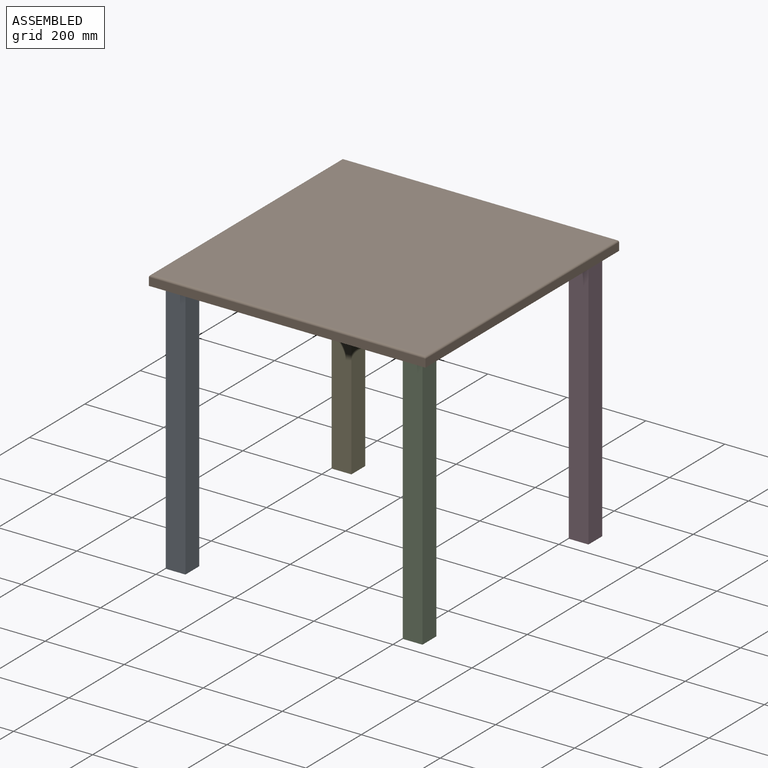
[diagram: assembled view]
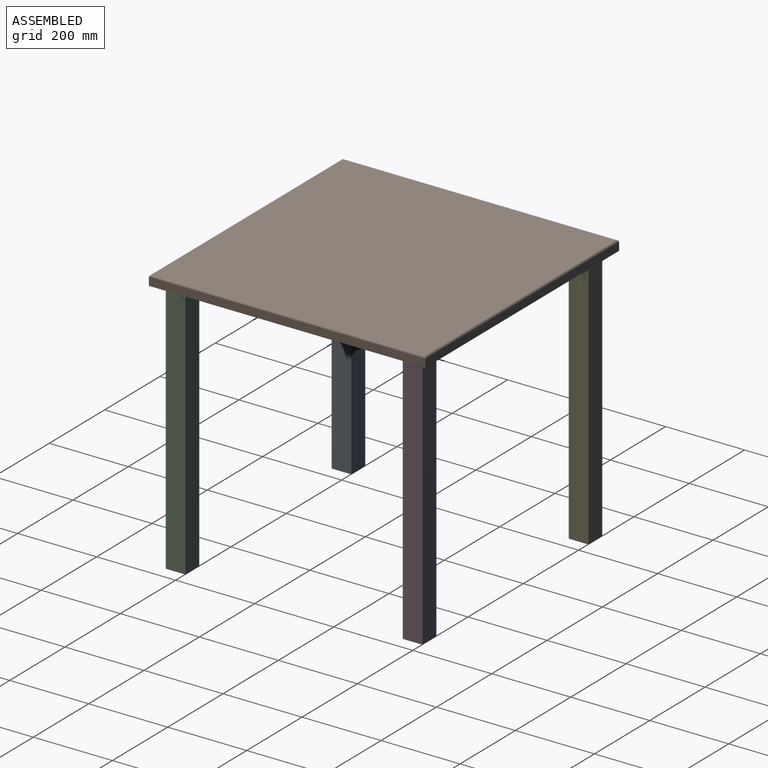
[diagram: assembled view, second angle]
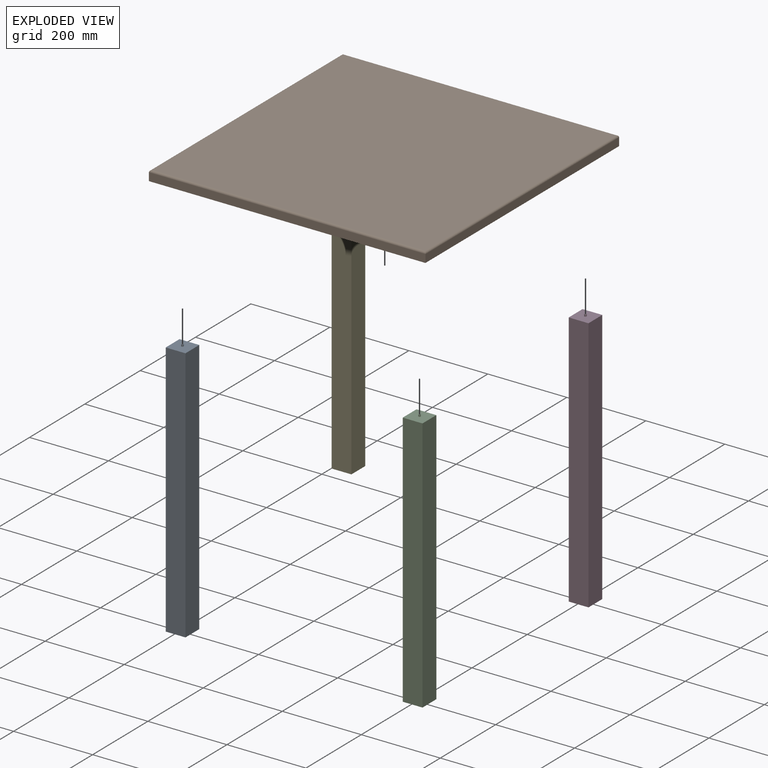
[diagram: exploded view]
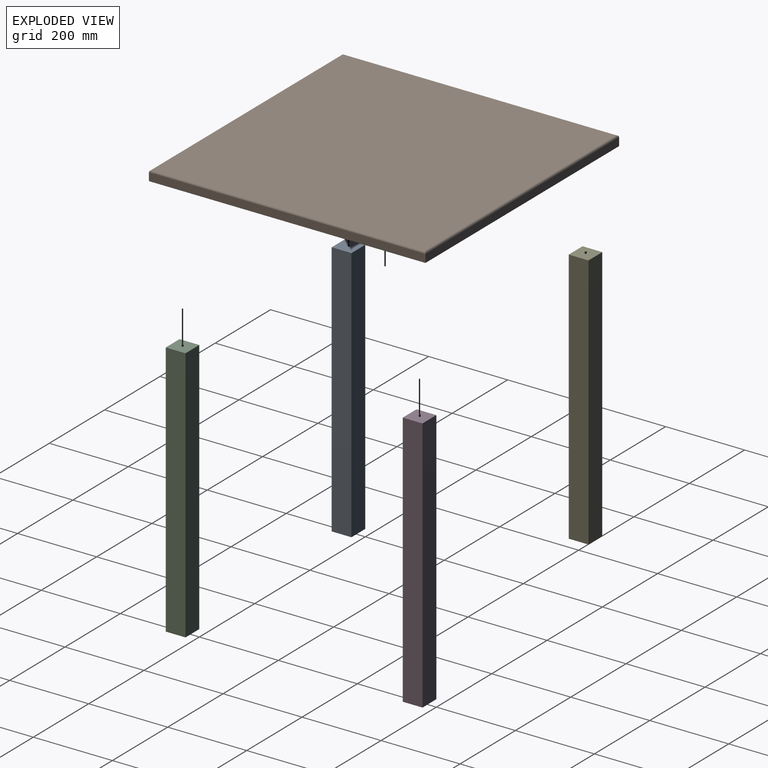
[diagram: exploded view, second angle]
ASSEMBLY  parts=5 mates=4
PART A: 8 faces, bbox 50x50x655 mm
  f0: plane 650x50mm, normal (0,-1,0), area 32500mm2, adj f1,f3,f4,f5
  f1: plane 650x50mm, normal (1,0,0), area 32500mm2, adj f0,f2,f4,f5
  f2: plane 650x50mm, normal (0,1,0), area 32500mm2, adj f1,f3,f4,f5
  f3: plane 650x50mm, normal (-1,0,0), area 32500mm2, adj f0,f2,f4,f5
  f4: plane 50x50mm, normal (0,0,-1), area 2500mm2, adj f0,f1,f2,f3
  f5: plane 50x50mm, normal (0,0,1), area 2480.4mm2, adj f0,f1,f2,f3,f6
  f6: cylinder r=2.5mm len=5mm, axis (0,0,-1), area 78.5mm2, adj f5,f7
  f7: plane 5x5mm, normal (0,0,1), area 19.6mm2, adj f6
PART B: 18 faces, bbox 700x700x25 mm
  f0: plane 700x20mm, normal (0,-1,0), area 14000mm2, adj f1,f3,f5,f6
  f1: plane 700x20mm, normal (1,0,0), area 14000mm2, adj f0,f2,f5,f7
  f2: plane 700x20mm, normal (0,1,0), area 14000mm2, adj f1,f3,f5,f9
  f3: plane 700x20mm, normal (-1,0,0), area 14000mm2, adj f0,f2,f5,f8
  f4: plane 690x690mm, normal (0,0,1), area 476100mm2, adj f6,f7,f8,f9
  f5: plane 700x700mm, normal (0,0,-1), area 489921.5mm2, adj f0,f1,f2,f3,f10,f12,f14,f16
  f6: cylinder r=5mm len=700mm, axis (-1,0,0), area 5469.2mm2, adj f0,f4,f7,f8
  f7: cylinder r=5mm len=700mm, axis (0,-1,0), area 5469.2mm2, adj f1,f4,f6,f9
  f8: cylinder r=5mm len=700mm, axis (0,1,0), area 5469.2mm2, adj f3,f4,f6,f9
  f9: cylinder r=5mm len=700mm, axis (1,0,0), area 5469.2mm2, adj f2,f4,f7,f8
  f10: cylinder r=2.5mm len=5mm, axis (0,0,-1), area 78.5mm2, adj f5,f11
  f11: plane 5x5mm, normal (0,0,-1), area 19.6mm2, adj f10
  f12: cylinder r=2.5mm len=5mm, axis (0,0,-1), area 78.5mm2, adj f5,f13
  f13: plane 5x5mm, normal (0,0,-1), area 19.6mm2, adj f12
  f14: cylinder r=2.5mm len=5mm, axis (0,0,-1), area 78.5mm2, adj f5,f15
  f15: plane 5x5mm, normal (0,0,-1), area 19.6mm2, adj f14
  f16: cylinder r=2.5mm len=5mm, axis (0,0,-1), area 78.5mm2, adj f5,f17
  f17: plane 5x5mm, normal (0,0,-1), area 19.6mm2, adj f16
PART C: same geometry as A
PART D: same geometry as A
PART E: same geometry as A
PLACE A rot(axis=(0,0,-1),90deg) t=(-575,-25,650)mm
PLACE B rot(axis=(0,0,-1),90deg) t=(-275,275,650)mm
PLACE C rot(axis=(0,0,-1),90deg) t=(25,-25,650)mm
PLACE D rot(axis=(0,0,-1),90deg) t=(25,575,650)mm
PLACE E rot(axis=(0,0,-1),90deg) t=(-575,575,650)mm
MATE fastened B.f12 <-> C.f6  axis (0,0,-1) through (25,-25,655)mm
MATE fastened E.f6 <-> B.f16  axis (0,0,1) through (-575,575,655)mm
MATE fastened A.f6 <-> B.f10  axis (0,0,1) through (-575,-25,655)mm
MATE fastened D.f6 <-> B.f14  axis (0,0,-1) through (25,575,655)mm
